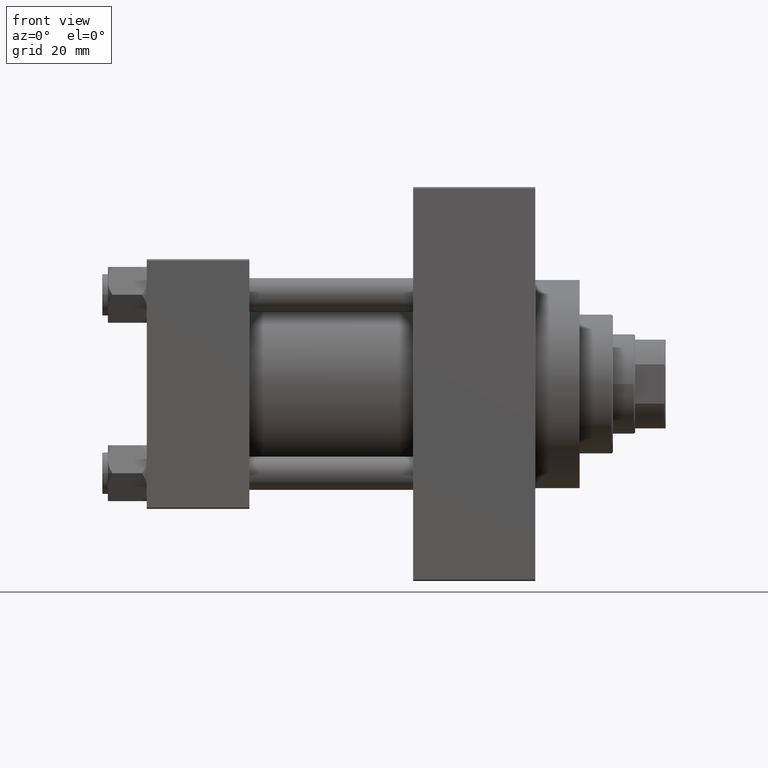
[diagram: clean part render]
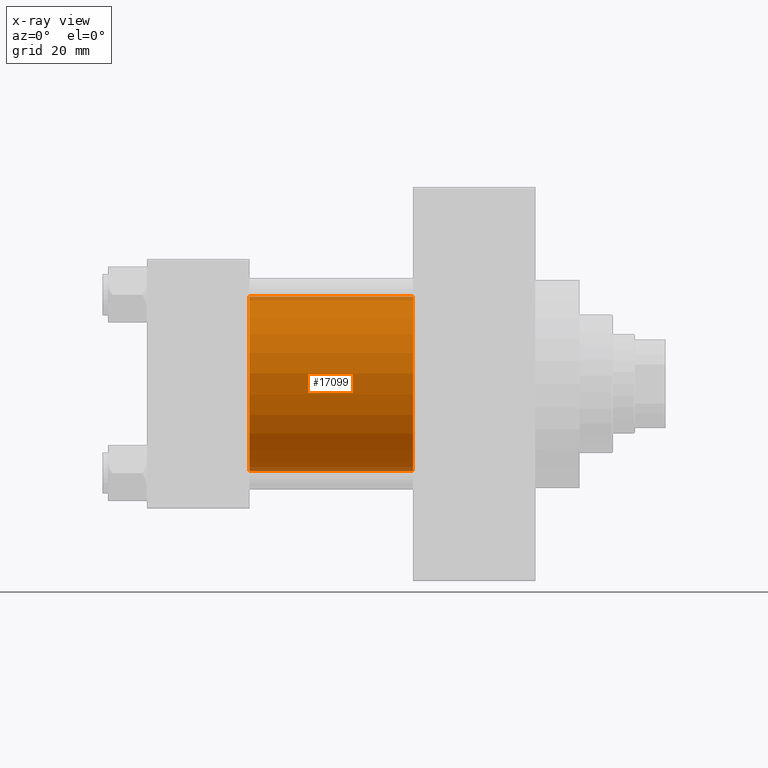
[diagram: x-ray — body ghosted, one internal face saturated and labeled with its STEP entity id]
A machine part, front view, then the same camera in x-ray: the body is ghosted and one INTERNAL B-rep face — a face not visible from any outside direction — is saturated and labeled: STEP entity #17099.
In plain terms, the highlighted cylindrical surface (partial cylindrical patch) has radius 31.5 mm, axis along (-1, -0, -0).
Its self-contained STEP definition (entity closure, byte-faithful):
#2785 = CARTESIAN_POINT ( 'NONE',  ( 96.00000000000000000, -2.602085213965210642E-15, 0.000000000000000000 ) ) ;
#2936 = DIRECTION ( 'NONE',  ( 1.000000000000000000, 0.000000000000000000, 0.000000000000000000 ) ) ;
#6841 = CYLINDRICAL_SURFACE ( 'NONE', #29586, 31.50000000000000000 ) ;
#7186 = LINE ( 'NONE', #21946, #17624 ) ;
#9100 = DIRECTION ( 'NONE',  ( 0.000000000000000000, 0.000000000000000000, -1.000000000000000000 ) ) ;
#9343 = AXIS2_PLACEMENT_3D ( 'NONE', #16479, #38458, #9100 ) ;
#16172 = CARTESIAN_POINT ( 'NONE',  ( 37.00000000000000000, 1.255552203348951850E-15, -31.50000000000000000 ) ) ;
#16292 = ORIENTED_EDGE ( 'NONE', *, *, #34390, .F. ) ;
#16479 = CARTESIAN_POINT ( 'NONE',  ( 96.00000000000000000, -2.602085213965210642E-15, 0.000000000000000000 ) ) ;
#16793 = VERTEX_POINT ( 'NONE', #23339 ) ;
#17099 = ADVANCED_FACE ( 'NONE', ( #17548 ), #6841, .F. ) ;
#17294 = EDGE_LOOP ( 'NONE', ( #26732, #28750, #16292, #35983 ) ) ;
#17466 = DIRECTION ( 'NONE',  ( 0.000000000000000000, 0.000000000000000000, -1.000000000000000000 ) ) ;
#17548 = FACE_OUTER_BOUND ( 'NONE', #17294, .T. ) ;
#17624 = VECTOR ( 'NONE', #43944, 1000.000000000000000 ) ;
#17776 = DIRECTION ( 'NONE',  ( -1.000000000000000000, -0.000000000000000000, -0.000000000000000000 ) ) ;
#18203 = VERTEX_POINT ( 'NONE', #34233 ) ;
#21354 = DIRECTION ( 'NONE',  ( 0.000000000000000000, 0.000000000000000000, 1.000000000000000000 ) ) ;
#21558 = EDGE_CURVE ( 'NONE', #16793, #45016, #27379, .T. ) ;
#21688 = EDGE_CURVE ( 'NONE', #42149, #18203, #7186, .T. ) ;
#21946 = CARTESIAN_POINT ( 'NONE',  ( 96.00000000000000000, -2.602085213965210642E-15, 31.50000000000000000 ) ) ;
#22313 = CARTESIAN_POINT ( 'NONE',  ( 96.00000000000000000, -2.602085213965210642E-15, 31.50000000000000000 ) ) ;
#23339 = CARTESIAN_POINT ( 'NONE',  ( 96.00000000000000000, 1.255552203348951850E-15, -31.50000000000000000 ) ) ;
#24950 = EDGE_CURVE ( 'NONE', #42149, #16793, #30680, .T. ) ;
#26732 = ORIENTED_EDGE ( 'NONE', *, *, #24950, .T. ) ;
#27379 = LINE ( 'NONE', #42197, #44323 ) ;
#28750 = ORIENTED_EDGE ( 'NONE', *, *, #21558, .T. ) ;
#29586 = AXIS2_PLACEMENT_3D ( 'NONE', #2785, #17776, #21354 ) ;
#30680 = CIRCLE ( 'NONE', #9343, 31.50000000000000000 ) ;
#34233 = CARTESIAN_POINT ( 'NONE',  ( 37.00000000000000000, -2.602085213965210642E-15, 31.50000000000000000 ) ) ;
#34390 = EDGE_CURVE ( 'NONE', #18203, #45016, #43841, .T. ) ;
#35632 = CARTESIAN_POINT ( 'NONE',  ( 37.00000000000000000, -2.602085213965210642E-15, 0.000000000000000000 ) ) ;
#35983 = ORIENTED_EDGE ( 'NONE', *, *, #21688, .F. ) ;
#38458 = DIRECTION ( 'NONE',  ( 1.000000000000000000, 0.000000000000000000, 0.000000000000000000 ) ) ;
#41479 = DIRECTION ( 'NONE',  ( -1.000000000000000000, -0.000000000000000000, -0.000000000000000000 ) ) ;
#41540 = AXIS2_PLACEMENT_3D ( 'NONE', #35632, #2936, #17466 ) ;
#42149 = VERTEX_POINT ( 'NONE', #22313 ) ;
#42197 = CARTESIAN_POINT ( 'NONE',  ( 96.00000000000000000, 1.255552203348951850E-15, -31.50000000000000000 ) ) ;
#43841 = CIRCLE ( 'NONE', #41540, 31.50000000000000000 ) ;
#43944 = DIRECTION ( 'NONE',  ( -1.000000000000000000, -0.000000000000000000, -0.000000000000000000 ) ) ;
#44323 = VECTOR ( 'NONE', #41479, 1000.000000000000000 ) ;
#45016 = VERTEX_POINT ( 'NONE', #16172 ) ;